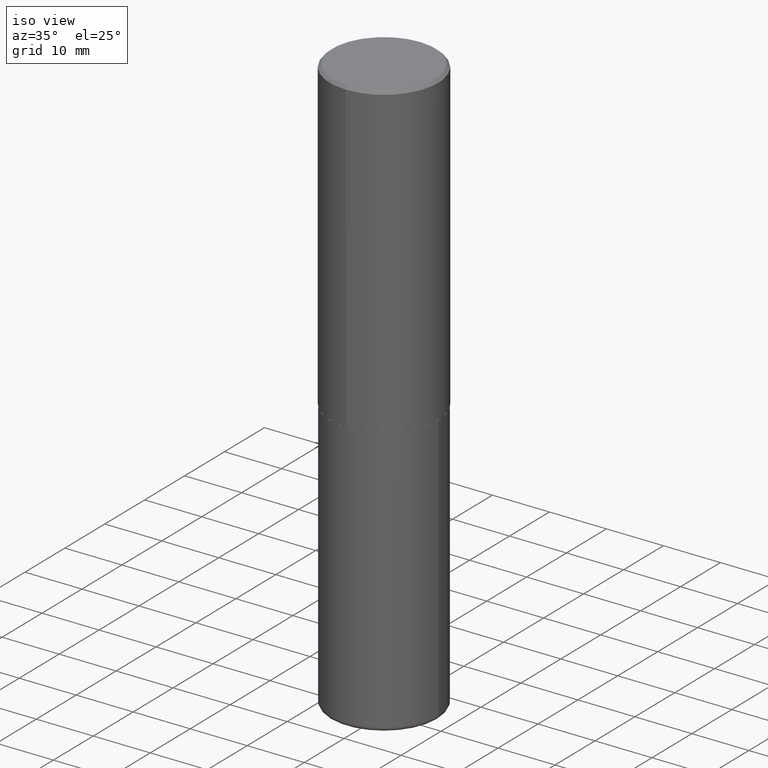
[diagram: clean part render]
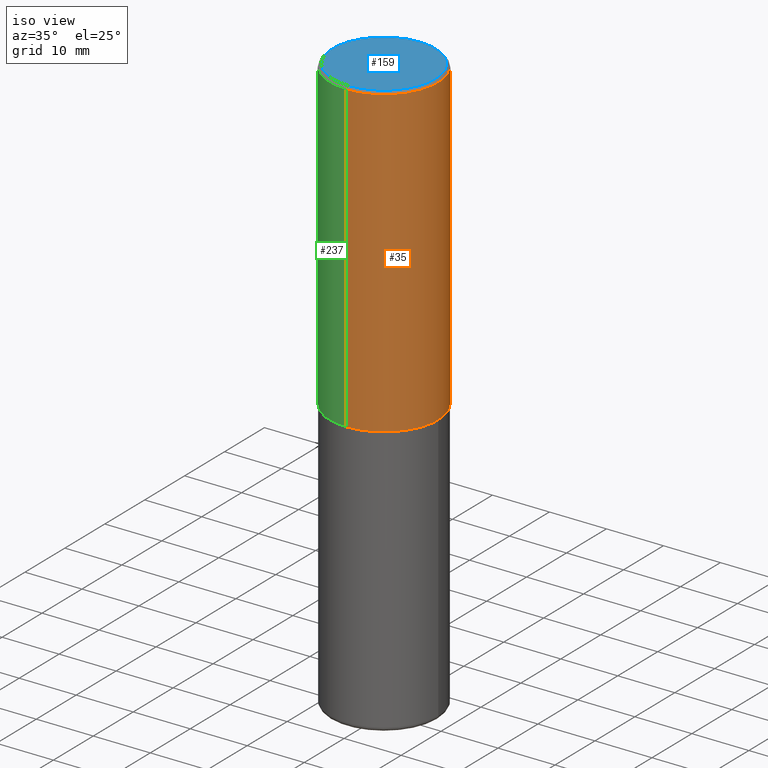
[diagram: same view with three faces highlighted in distinct colors, each labeled with its STEP entity id]
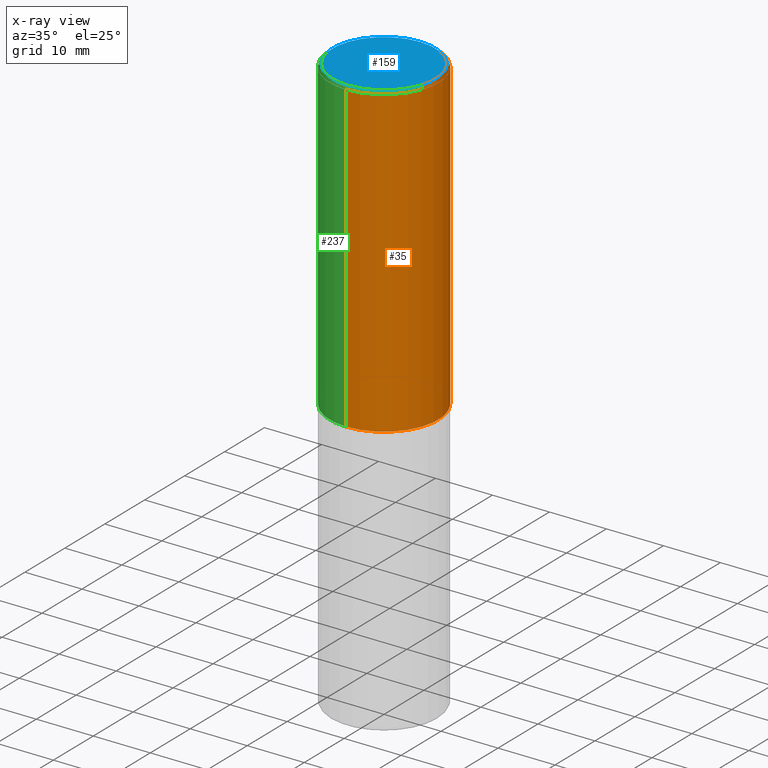
[diagram: x-ray of the same camera — body ghosted, the three highlighted faces saturated]
A machine part, iso view with three faces highlighted in distinct colors.
The next image is the same camera in x-ray (body ghosted, the three faces saturated) — at least one of them is partly hidden behind the body in this view.
Their STEP definitions:

[orange] entity #35 — the highlighted cylindrical surface (partial cylindrical patch) has radius 9.525 mm, axis along (-0, 0, 1).
#2 = CARTESIAN_POINT ( 'NONE',  ( 2.664535259100376880E-15, 0.3750000000000002220, -1.309772154642007612E-15 ) ) ;
#18 = CARTESIAN_POINT ( 'NONE',  ( 0.000000000000000000, 0.000000000000000000, 0.000000000000000000 ) ) ;
#25 = FACE_OUTER_BOUND ( 'NONE', #168, .T. ) ;
#27 = VERTEX_POINT ( 'NONE', #149 ) ;
#32 = CARTESIAN_POINT ( 'NONE',  ( 4.889199683026055945E-31, -6.985451491424065481E-17, -0.02000000000000008715 ) ) ;
#35 = ADVANCED_FACE ( 'NONE', ( #25 ), #310, .T. ) ;
#37 = ORIENTED_EDGE ( 'NONE', *, *, #367, .F. ) ;
#52 = AXIS2_PLACEMENT_3D ( 'NONE', #32, #289, #129 ) ;
#65 = CARTESIAN_POINT ( 'NONE',  ( -2.572686749164324336E-15, -0.3750000000000001665, -0.01999999999999877570 ) ) ;
#74 = VERTEX_POINT ( 'NONE', #65 ) ;
#77 = ORIENTED_EDGE ( 'NONE', *, *, #153, .T. ) ;
#100 = CARTESIAN_POINT ( 'NONE',  ( 5.192330063373648592E-29, -7.418549483892325607E-15, -2.123999999999999666 ) ) ;
#120 = DIRECTION ( 'NONE',  ( -2.444599841513017620E-29, 3.492725745712017802E-15, 1.000000000000000000 ) ) ;
#122 = ORIENTED_EDGE ( 'NONE', *, *, #346, .T. ) ;
#129 = DIRECTION ( 'NONE',  ( -6.982962677686265922E-15, -1.000000000000000000, 3.494488891895535640E-15 ) ) ;
#134 = CARTESIAN_POINT ( 'NONE',  ( 2.664535259100402913E-15, 0.3749999999999928391, -2.124000000000000998 ) ) ;
#141 = DIRECTION ( 'NONE',  ( -2.444599841513017620E-29, 3.492725745712018196E-15, 1.000000000000000000 ) ) ;
#149 = CARTESIAN_POINT ( 'NONE',  ( -2.618611004132299924E-15, -0.3750000000000077716, -2.123999999999998334 ) ) ;
#153 = EDGE_CURVE ( 'NONE', #27, #369, #191, .T. ) ;
#157 = DIRECTION ( 'NONE',  ( -6.982962677686266711E-15, -1.000000000000000000, 3.492725745712018196E-15 ) ) ;
#161 = DIRECTION ( 'NONE',  ( -2.444599841513017620E-29, 3.492725745712017802E-15, 1.000000000000000000 ) ) ;
#167 = DIRECTION ( 'NONE',  ( -2.444599841513017620E-29, 3.492725745712018196E-15, 1.000000000000000000 ) ) ;
#168 = EDGE_LOOP ( 'NONE', ( #77, #122, #251, #37 ) ) ;
#190 = EDGE_CURVE ( 'NONE', #74, #272, #242, .T. ) ;
#191 = CIRCLE ( 'NONE', #417, 0.3750000000000002776 ) ;
#238 = CARTESIAN_POINT ( 'NONE',  ( 2.618611004132351200E-15, 0.3750000000000000555, -0.02000000000000139513 ) ) ;
#242 = CIRCLE ( 'NONE', #52, 0.3750000000000001110 ) ;
#251 = ORIENTED_EDGE ( 'NONE', *, *, #190, .F. ) ;
#272 = VERTEX_POINT ( 'NONE', #238 ) ;
#289 = DIRECTION ( 'NONE',  ( -2.444599841513017620E-29, 3.492725745712017802E-15, 1.000000000000000000 ) ) ;
#305 = LINE ( 'NONE', #2, #325 ) ;
#310 = CYLINDRICAL_SURFACE ( 'NONE', #362, 0.3750000000000002220 ) ;
#325 = VECTOR ( 'NONE', #141, 39.37007874015748143 ) ;
#346 = EDGE_CURVE ( 'NONE', #369, #272, #305, .T. ) ;
#358 = VECTOR ( 'NONE', #167, 39.37007874015748143 ) ;
#359 = LINE ( 'NONE', #360, #358 ) ;
#360 = CARTESIAN_POINT ( 'NONE',  ( -2.618611004132351594E-15, -0.3750000000000002220, 1.309772154642007612E-15 ) ) ;
#362 = AXIS2_PLACEMENT_3D ( 'NONE', #18, #120, #157 ) ;
#367 = EDGE_CURVE ( 'NONE', #27, #74, #359, .T. ) ;
#369 = VERTEX_POINT ( 'NONE', #134 ) ;
#415 = DIRECTION ( 'NONE',  ( -6.982962677686266711E-15, -1.000000000000000000, 3.642463991552348591E-15 ) ) ;
#417 = AXIS2_PLACEMENT_3D ( 'NONE', #100, #161, #415 ) ;

[blue] entity #159 — the highlighted planar face has unit normal (0, -0, -1).
#7 = CARTESIAN_POINT ( 'NONE',  ( -1.576020116281570290E-45, 2.251741140787182714E-31, 6.446945178995578068E-17 ) ) ;
#21 = CIRCLE ( 'NONE', #182, 0.3549999999999999822 ) ;
#66 = PLANE ( 'NONE',  #117 ) ;
#86 = VERTEX_POINT ( 'NONE', #195 ) ;
#101 = DIRECTION ( 'NONE',  ( -6.982962677686265922E-15, -1.000000000000000000, 3.492725745712017407E-15 ) ) ;
#117 = AXIS2_PLACEMENT_3D ( 'NONE', #230, #201, #322 ) ;
#132 = CARTESIAN_POINT ( 'NONE',  ( -1.576020116281570290E-45, 2.251741140787182714E-31, 6.446945178995578068E-17 ) ) ;
#159 = ADVANCED_FACE ( 'NONE', ( #232 ), #66, .F. ) ;
#182 = AXIS2_PLACEMENT_3D ( 'NONE', #132, #262, #101 ) ;
#195 = CARTESIAN_POINT ( 'NONE',  ( 2.548781377355487507E-15, 0.3549999999999999822, -1.175448187937810043E-15 ) ) ;
#201 = DIRECTION ( 'NONE',  ( 2.444599841513016780E-29, -3.492725745712018196E-15, -1.000000000000000000 ) ) ;
#212 = ORIENTED_EDGE ( 'NONE', *, *, #257, .T. ) ;
#230 = CARTESIAN_POINT ( 'NONE',  ( 2.478951750578624209E-15, 0.3549999999999999822, -1.207682913832788389E-15 ) ) ;
#232 = FACE_OUTER_BOUND ( 'NONE', #308, .T. ) ;
#239 = DIRECTION ( 'NONE',  ( -6.982962677686265922E-15, -1.000000000000000000, 3.492725745712017407E-15 ) ) ;
#257 = EDGE_CURVE ( 'NONE', #86, #269, #21, .T. ) ;
#262 = DIRECTION ( 'NONE',  ( -2.444599841513017620E-29, 3.492725745712017802E-15, 1.000000000000000000 ) ) ;
#269 = VERTEX_POINT ( 'NONE', #386 ) ;
#308 = EDGE_LOOP ( 'NONE', ( #212, #335 ) ) ;
#322 = DIRECTION ( 'NONE',  ( 6.982962677686265922E-15, 1.000000000000000000, -3.492725745712018196E-15 ) ) ;
#330 = DIRECTION ( 'NONE',  ( -2.444599841513017620E-29, 3.492725745712017802E-15, 1.000000000000000000 ) ) ;
#335 = ORIENTED_EDGE ( 'NONE', *, *, #414, .T. ) ;
#353 = AXIS2_PLACEMENT_3D ( 'NONE', #7, #330, #239 ) ;
#383 = CIRCLE ( 'NONE', #353, 0.3549999999999999822 ) ;
#386 = CARTESIAN_POINT ( 'NONE',  ( -2.504081769186608610E-15, -0.3549999999999999822, 1.304387091517721851E-15 ) ) ;
#414 = EDGE_CURVE ( 'NONE', #269, #86, #383, .T. ) ;

[green] entity #237 — the highlighted cylindrical surface (partial cylindrical patch) has radius 9.525 mm, axis along (-0, 0, 1).
#2 = CARTESIAN_POINT ( 'NONE',  ( 2.664535259100376880E-15, 0.3750000000000002220, -1.309772154642007612E-15 ) ) ;
#16 = ORIENTED_EDGE ( 'NONE', *, *, #367, .T. ) ;
#19 = EDGE_CURVE ( 'NONE', #272, #74, #225, .T. ) ;
#23 = CARTESIAN_POINT ( 'NONE',  ( 4.889199683026055945E-31, -6.985451491424065481E-17, -0.02000000000000008715 ) ) ;
#27 = VERTEX_POINT ( 'NONE', #149 ) ;
#34 = CARTESIAN_POINT ( 'NONE',  ( 0.000000000000000000, 0.000000000000000000, 0.000000000000000000 ) ) ;
#48 = ORIENTED_EDGE ( 'NONE', *, *, #72, .T. ) ;
#60 = CARTESIAN_POINT ( 'NONE',  ( 5.192330063373648592E-29, -7.418549483892325607E-15, -2.123999999999999666 ) ) ;
#65 = CARTESIAN_POINT ( 'NONE',  ( -2.572686749164324336E-15, -0.3750000000000001665, -0.01999999999999877570 ) ) ;
#72 = EDGE_CURVE ( 'NONE', #369, #27, #357, .T. ) ;
#74 = VERTEX_POINT ( 'NONE', #65 ) ;
#92 = DIRECTION ( 'NONE',  ( -2.444599841513017620E-29, 3.492725745712017802E-15, 1.000000000000000000 ) ) ;
#95 = DIRECTION ( 'NONE',  ( -6.982962677686266711E-15, -1.000000000000000000, 3.642463991552348591E-15 ) ) ;
#134 = CARTESIAN_POINT ( 'NONE',  ( 2.664535259100402913E-15, 0.3749999999999928391, -2.124000000000000998 ) ) ;
#141 = DIRECTION ( 'NONE',  ( -2.444599841513017620E-29, 3.492725745712018196E-15, 1.000000000000000000 ) ) ;
#142 = EDGE_LOOP ( 'NONE', ( #304, #48, #16, #329 ) ) ;
#149 = CARTESIAN_POINT ( 'NONE',  ( -2.618611004132299924E-15, -0.3750000000000077716, -2.123999999999998334 ) ) ;
#167 = DIRECTION ( 'NONE',  ( -2.444599841513017620E-29, 3.492725745712018196E-15, 1.000000000000000000 ) ) ;
#225 = CIRCLE ( 'NONE', #394, 0.3750000000000001110 ) ;
#237 = ADVANCED_FACE ( 'NONE', ( #381 ), #293, .T. ) ;
#238 = CARTESIAN_POINT ( 'NONE',  ( 2.618611004132351200E-15, 0.3750000000000000555, -0.02000000000000139513 ) ) ;
#254 = DIRECTION ( 'NONE',  ( -6.982962677686265922E-15, -1.000000000000000000, 3.494488891895535640E-15 ) ) ;
#272 = VERTEX_POINT ( 'NONE', #238 ) ;
#274 = AXIS2_PLACEMENT_3D ( 'NONE', #60, #320, #95 ) ;
#291 = DIRECTION ( 'NONE',  ( -6.982962677686266711E-15, -1.000000000000000000, 3.492725745712018196E-15 ) ) ;
#293 = CYLINDRICAL_SURFACE ( 'NONE', #382, 0.3750000000000002220 ) ;
#304 = ORIENTED_EDGE ( 'NONE', *, *, #346, .F. ) ;
#305 = LINE ( 'NONE', #2, #325 ) ;
#320 = DIRECTION ( 'NONE',  ( -2.444599841513017620E-29, 3.492725745712017802E-15, 1.000000000000000000 ) ) ;
#325 = VECTOR ( 'NONE', #141, 39.37007874015748143 ) ;
#326 = DIRECTION ( 'NONE',  ( -2.444599841513017620E-29, 3.492725745712017802E-15, 1.000000000000000000 ) ) ;
#329 = ORIENTED_EDGE ( 'NONE', *, *, #19, .F. ) ;
#346 = EDGE_CURVE ( 'NONE', #369, #272, #305, .T. ) ;
#357 = CIRCLE ( 'NONE', #274, 0.3750000000000002776 ) ;
#358 = VECTOR ( 'NONE', #167, 39.37007874015748143 ) ;
#359 = LINE ( 'NONE', #360, #358 ) ;
#360 = CARTESIAN_POINT ( 'NONE',  ( -2.618611004132351594E-15, -0.3750000000000002220, 1.309772154642007612E-15 ) ) ;
#367 = EDGE_CURVE ( 'NONE', #27, #74, #359, .T. ) ;
#369 = VERTEX_POINT ( 'NONE', #134 ) ;
#381 = FACE_OUTER_BOUND ( 'NONE', #142, .T. ) ;
#382 = AXIS2_PLACEMENT_3D ( 'NONE', #34, #326, #291 ) ;
#394 = AXIS2_PLACEMENT_3D ( 'NONE', #23, #92, #254 ) ;